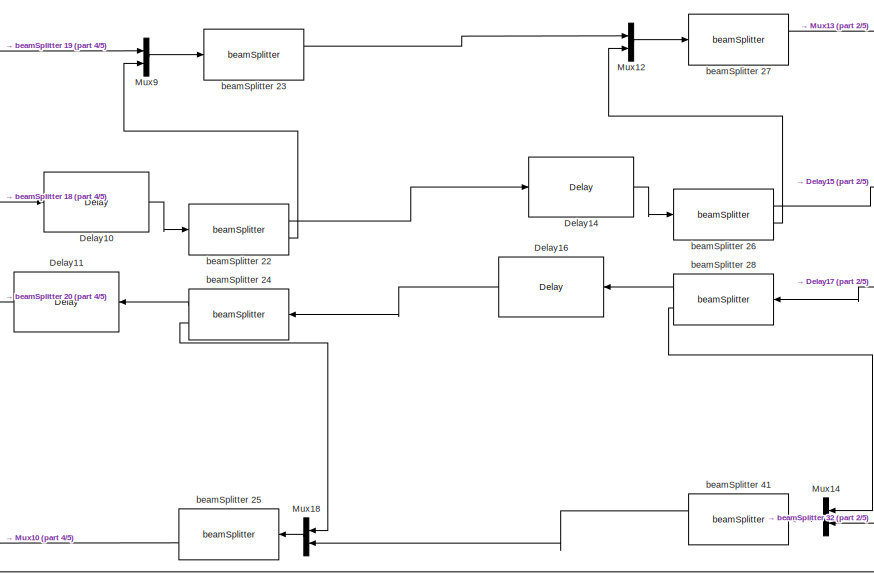
[diagram: root canvas - part 1/5, center side, full height]
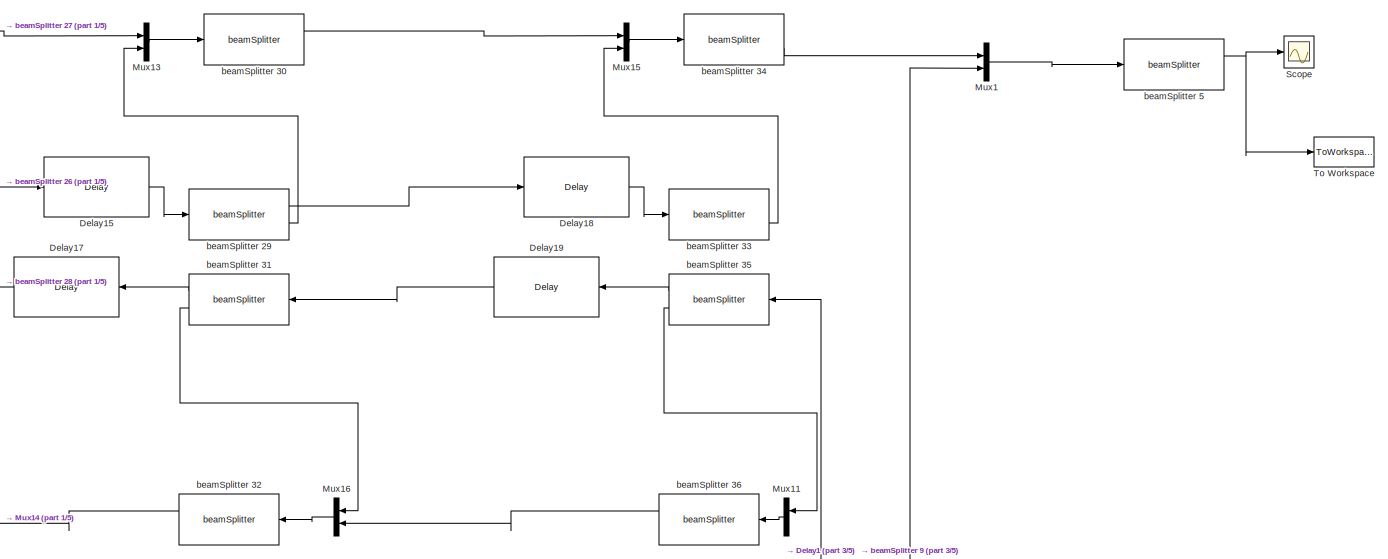
[diagram: root canvas - part 2/5, right side, full height]
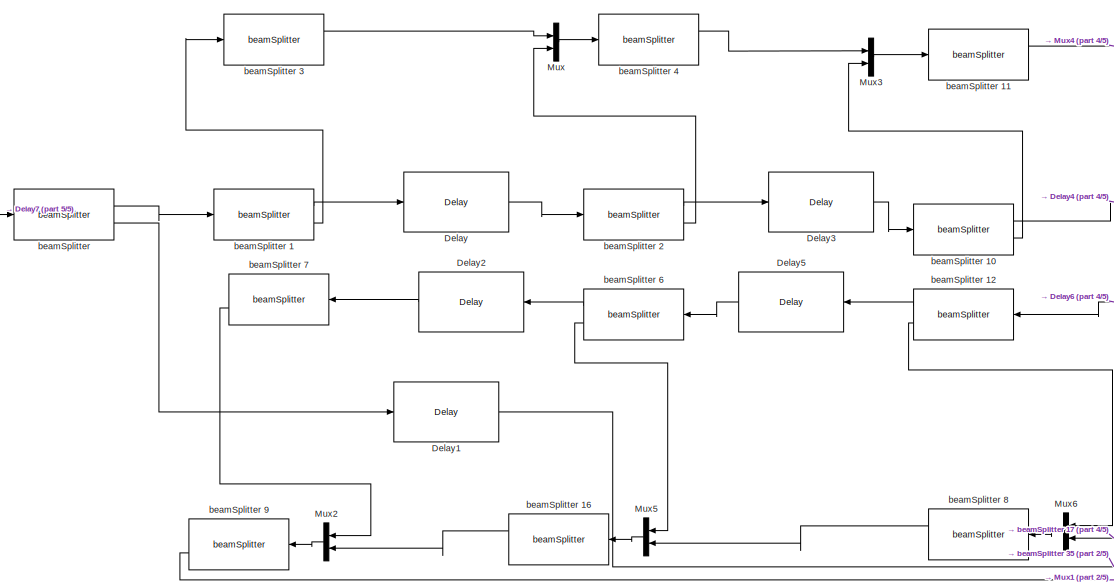
[diagram: root canvas - part 3/5, left side, full height]
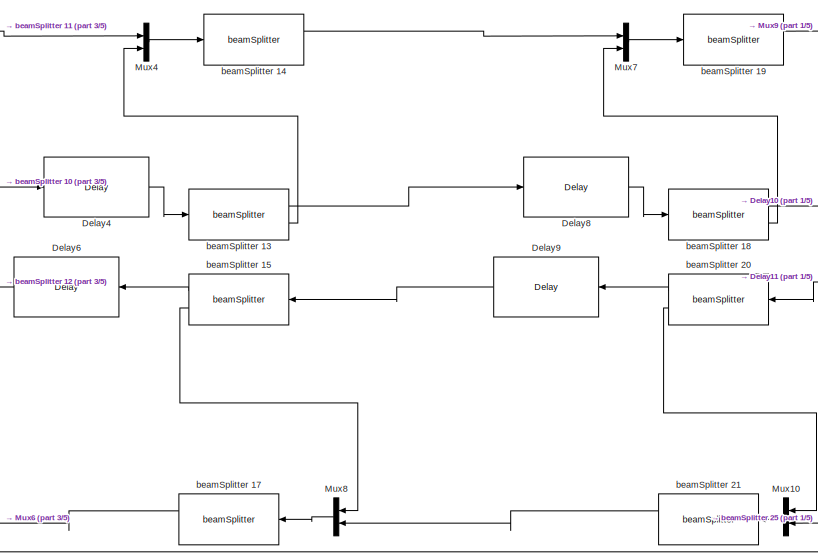
[diagram: root canvas - part 4/5, center side, full height]
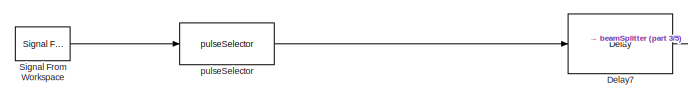
[diagram: root canvas - part 5/5, middle left region]
MODEL slx_b79724e3033b
KIND model
CONFIG InitFcn = initialization_n_20;
CONFIG StopFcn = OutputPlotting;
BLOCK [Reference] Delay  REF=BlockLib/Delay
  DelayAmt = delays(2)-delays(1)
  Ports = [1, 1]
  SourceBlock = BlockLib/Delay
BLOCK [Reference] Delay1  REF=BlockLib/Delay
  DelayAmt = delays(10)-delays(1)
  Ports = [1, 1]
  SourceBlock = BlockLib/Delay
BLOCK [Reference] Delay10  REF=BlockLib/Delay
  DelayAmt = delays(6)-delays(5)
  Ports = [1, 1]
  SourceBlock = BlockLib/Delay
BLOCK [Reference] Delay11  REF=BlockLib/Delay
  DelayAmt = delays(6)-delays(5)
  Ports = [1, 1]
  SourceBlock = BlockLib/Delay
BLOCK [Reference] Delay14  REF=BlockLib/Delay
  DelayAmt = delays(7)-delays(6)
  Ports = [1, 1]
  SourceBlock = BlockLib/Delay
BLOCK [Reference] Delay15  REF=BlockLib/Delay
  DelayAmt = delays(8)-delays(7)
  Ports = [1, 1]
  SourceBlock = BlockLib/Delay
BLOCK [Reference] Delay16  REF=BlockLib/Delay
  DelayAmt = delays(7)-delays(6)
  Ports = [1, 1]
  SourceBlock = BlockLib/Delay
BLOCK [Reference] Delay17  REF=BlockLib/Delay
  DelayAmt = delays(8)-delays(7)
  Ports = [1, 1]
  SourceBlock = BlockLib/Delay
BLOCK [Reference] Delay18  REF=BlockLib/Delay
  DelayAmt = delays(9)-delays(8)
  Ports = [1, 1]
  SourceBlock = BlockLib/Delay
BLOCK [Reference] Delay19  REF=BlockLib/Delay
  DelayAmt = delays(9)-delays(8)
  Ports = [1, 1]
  SourceBlock = BlockLib/Delay
BLOCK [Reference] Delay2  REF=BlockLib/Delay
  DelayAmt = delays(2)-delays(1)
  Ports = [1, 1]
  SourceBlock = BlockLib/Delay
BLOCK [Reference] Delay3  REF=BlockLib/Delay
  DelayAmt = delays(3)-delays(2)
  Ports = [1, 1]
  SourceBlock = BlockLib/Delay
BLOCK [Reference] Delay4  REF=BlockLib/Delay
  DelayAmt = delays(4)-delays(3)
  Ports = [1, 1]
  SourceBlock = BlockLib/Delay
BLOCK [Reference] Delay5  REF=BlockLib/Delay
  DelayAmt = delays(3)-delays(2)
  Ports = [1, 1]
  SourceBlock = BlockLib/Delay
BLOCK [Reference] Delay6  REF=BlockLib/Delay
  DelayAmt = delays(4)-delays(3)
  Ports = [1, 1]
  SourceBlock = BlockLib/Delay
BLOCK [Reference] Delay7  REF=BlockLib/Delay
  DelayAmt = delays(1)
  Ports = [1, 1]
  SourceBlock = BlockLib/Delay
BLOCK [Reference] Delay8  REF=BlockLib/Delay
  DelayAmt = delays(5)-delays(4)
  Ports = [1, 1]
  SourceBlock = BlockLib/Delay
BLOCK [Reference] Delay9  REF=BlockLib/Delay
  DelayAmt = delays(5)-delays(4)
  Ports = [1, 1]
  SourceBlock = BlockLib/Delay
BLOCK [Mux] Mux
  DisplayOption = bar
  Inputs = 2
  Ports = [2, 1]
BLOCK [Mux] Mux1
  DisplayOption = bar
  Inputs = 2
  Ports = [2, 1]
BLOCK [Mux] Mux10
  DisplayOption = bar
  Inputs = 2
  Ports = [2, 1]
BLOCK [Mux] Mux11
  DisplayOption = bar
  Inputs = 2
  Ports = [2, 1]
BLOCK [Mux] Mux12
  DisplayOption = bar
  Inputs = 2
  Ports = [2, 1]
BLOCK [Mux] Mux13
  DisplayOption = bar
  Inputs = 2
  Ports = [2, 1]
BLOCK [Mux] Mux14
  DisplayOption = bar
  Inputs = 2
  Ports = [2, 1]
BLOCK [Mux] Mux15
  DisplayOption = bar
  Inputs = 2
  Ports = [2, 1]
BLOCK [Mux] Mux16
  DisplayOption = bar
  Inputs = 2
  Ports = [2, 1]
BLOCK [Mux] Mux18
  DisplayOption = bar
  Inputs = 2
  Ports = [2, 1]
BLOCK [Mux] Mux2
  DisplayOption = bar
  Inputs = 2
  Ports = [2, 1]
BLOCK [Mux] Mux3
  DisplayOption = bar
  Inputs = 2
  Ports = [2, 1]
BLOCK [Mux] Mux4
  DisplayOption = bar
  Inputs = 2
  Ports = [2, 1]
BLOCK [Mux] Mux5
  DisplayOption = bar
  Inputs = 2
  Ports = [2, 1]
BLOCK [Mux] Mux6
  DisplayOption = bar
  Inputs = 2
  Ports = [2, 1]
BLOCK [Mux] Mux7
  DisplayOption = bar
  Inputs = 2
  Ports = [2, 1]
BLOCK [Mux] Mux8
  DisplayOption = bar
  Inputs = 2
  Ports = [2, 1]
BLOCK [Mux] Mux9
  DisplayOption = bar
  Inputs = 2
  Ports = [2, 1]
BLOCK [Scope] Scope
  Floating = off
  NumInputPorts = 1
  Ports = [1]
  ShowLegends = off
BLOCK [Reference] Signal From Workspace  REF=dspsrcs4/Signal From
Workspace
  OutputAfterFinalValue = Setting to zero
  Ports = [0, 1]
  SourceBlock = dspsrcs4/Signal From\nWorkspace
  SourceType = Signal From Workspace
  Ts = 1
  X = inputsignal
  ignoreOrWarnInputAndFrameLengths = off
  nsamps = 1
BLOCK [ToWorkspace] To Workspace
  FixptAsFi = on
  MaxDataPoints = inf
  Ports = [1]
  SampleTime = -1
  Save2DSignal = 3-D array (concatenate along third dimension)
  SaveFormat = Timeseries
  VariableName = simout
BLOCK [Reference] beamSplitter   REF=BlockLib/beamSplitter

  Ports = [1, 2]
  SourceBlock = BlockLib/beamSplitter
  SourceType = SubSystem
BLOCK [Reference] beamSplitter 1  REF=BlockLib/beamSplitter

  Ports = [1, 2]
  SourceBlock = BlockLib/beamSplitter
  SourceType = SubSystem
BLOCK [Reference] beamSplitter 10  REF=BlockLib/beamSplitter

  Ports = [1, 2]
  SourceBlock = BlockLib/beamSplitter
  SourceType = SubSystem
BLOCK [Reference] beamSplitter 11  REF=BlockLib/beamSplitter

  Ports = [1, 2]
  SourceBlock = BlockLib/beamSplitter
  SourceType = SubSystem
BLOCK [Reference] beamSplitter 12  REF=BlockLib/beamSplitter

  Ports = [1, 2]
  SourceBlock = BlockLib/beamSplitter
  SourceType = SubSystem
BLOCK [Reference] beamSplitter 13  REF=BlockLib/beamSplitter

  Ports = [1, 2]
  SourceBlock = BlockLib/beamSplitter
  SourceType = SubSystem
BLOCK [Reference] beamSplitter 14  REF=BlockLib/beamSplitter

  Ports = [1, 2]
  SourceBlock = BlockLib/beamSplitter
  SourceType = SubSystem
BLOCK [Reference] beamSplitter 15  REF=BlockLib/beamSplitter

  Ports = [1, 2]
  SourceBlock = BlockLib/beamSplitter
  SourceType = SubSystem
BLOCK [Reference] beamSplitter 16  REF=BlockLib/beamSplitter

  Ports = [1, 2]
  SourceBlock = BlockLib/beamSplitter
  SourceType = SubSystem
BLOCK [Reference] beamSplitter 17  REF=BlockLib/beamSplitter

  Ports = [1, 2]
  SourceBlock = BlockLib/beamSplitter
  SourceType = SubSystem
BLOCK [Reference] beamSplitter 18  REF=BlockLib/beamSplitter

  Ports = [1, 2]
  SourceBlock = BlockLib/beamSplitter
  SourceType = SubSystem
BLOCK [Reference] beamSplitter 19  REF=BlockLib/beamSplitter

  Ports = [1, 2]
  SourceBlock = BlockLib/beamSplitter
  SourceType = SubSystem
BLOCK [Reference] beamSplitter 2  REF=BlockLib/beamSplitter

  Ports = [1, 2]
  SourceBlock = BlockLib/beamSplitter
  SourceType = SubSystem
BLOCK [Reference] beamSplitter 20  REF=BlockLib/beamSplitter

  Ports = [1, 2]
  SourceBlock = BlockLib/beamSplitter
  SourceType = SubSystem
BLOCK [Reference] beamSplitter 21  REF=BlockLib/beamSplitter

  Ports = [1, 2]
  SourceBlock = BlockLib/beamSplitter
  SourceType = SubSystem
BLOCK [Reference] beamSplitter 22  REF=BlockLib/beamSplitter

  Ports = [1, 2]
  SourceBlock = BlockLib/beamSplitter
  SourceType = SubSystem
BLOCK [Reference] beamSplitter 23  REF=BlockLib/beamSplitter

  Ports = [1, 2]
  SourceBlock = BlockLib/beamSplitter
  SourceType = SubSystem
BLOCK [Reference] beamSplitter 24  REF=BlockLib/beamSplitter

  Ports = [1, 2]
  SourceBlock = BlockLib/beamSplitter
  SourceType = SubSystem
BLOCK [Reference] beamSplitter 25  REF=BlockLib/beamSplitter

  Ports = [1, 2]
  SourceBlock = BlockLib/beamSplitter
  SourceType = SubSystem
BLOCK [Reference] beamSplitter 26  REF=BlockLib/beamSplitter

  Ports = [1, 2]
  SourceBlock = BlockLib/beamSplitter
  SourceType = SubSystem
BLOCK [Reference] beamSplitter 27  REF=BlockLib/beamSplitter

  Ports = [1, 2]
  SourceBlock = BlockLib/beamSplitter
  SourceType = SubSystem
BLOCK [Reference] beamSplitter 28  REF=BlockLib/beamSplitter

  Ports = [1, 2]
  SourceBlock = BlockLib/beamSplitter
  SourceType = SubSystem
BLOCK [Reference] beamSplitter 29  REF=BlockLib/beamSplitter

  Ports = [1, 2]
  SourceBlock = BlockLib/beamSplitter
  SourceType = SubSystem
BLOCK [Reference] beamSplitter 3  REF=BlockLib/beamSplitter

  Ports = [1, 2]
  SourceBlock = BlockLib/beamSplitter
  SourceType = SubSystem
BLOCK [Reference] beamSplitter 30  REF=BlockLib/beamSplitter

  Ports = [1, 2]
  SourceBlock = BlockLib/beamSplitter
  SourceType = SubSystem
BLOCK [Reference] beamSplitter 31  REF=BlockLib/beamSplitter

  Ports = [1, 2]
  SourceBlock = BlockLib/beamSplitter
  SourceType = SubSystem
BLOCK [Reference] beamSplitter 32  REF=BlockLib/beamSplitter

  Ports = [1, 2]
  SourceBlock = BlockLib/beamSplitter
  SourceType = SubSystem
BLOCK [Reference] beamSplitter 33  REF=BlockLib/beamSplitter

  Ports = [1, 2]
  SourceBlock = BlockLib/beamSplitter
  SourceType = SubSystem
BLOCK [Reference] beamSplitter 34  REF=BlockLib/beamSplitter

  Ports = [1, 2]
  SourceBlock = BlockLib/beamSplitter
  SourceType = SubSystem
BLOCK [Reference] beamSplitter 35  REF=BlockLib/beamSplitter

  Ports = [1, 2]
  SourceBlock = BlockLib/beamSplitter
  SourceType = SubSystem
BLOCK [Reference] beamSplitter 36  REF=BlockLib/beamSplitter

  Ports = [1, 2]
  SourceBlock = BlockLib/beamSplitter
  SourceType = SubSystem
BLOCK [Reference] beamSplitter 4  REF=BlockLib/beamSplitter

  Ports = [1, 2]
  SourceBlock = BlockLib/beamSplitter
  SourceType = SubSystem
BLOCK [Reference] beamSplitter 41  REF=BlockLib/beamSplitter

  Ports = [1, 2]
  SourceBlock = BlockLib/beamSplitter
  SourceType = SubSystem
BLOCK [Reference] beamSplitter 5  REF=BlockLib/beamSplitter

  Ports = [1, 2]
  SourceBlock = BlockLib/beamSplitter
  SourceType = SubSystem
BLOCK [Reference] beamSplitter 6  REF=BlockLib/beamSplitter

  Ports = [1, 2]
  SourceBlock = BlockLib/beamSplitter
  SourceType = SubSystem
BLOCK [Reference] beamSplitter 7  REF=BlockLib/beamSplitter

  Ports = [1, 2]
  SourceBlock = BlockLib/beamSplitter
  SourceType = SubSystem
BLOCK [Reference] beamSplitter 8  REF=BlockLib/beamSplitter

  Ports = [1, 2]
  SourceBlock = BlockLib/beamSplitter
  SourceType = SubSystem
BLOCK [Reference] beamSplitter 9  REF=BlockLib/beamSplitter

  Ports = [1, 2]
  SourceBlock = BlockLib/beamSplitter
  SourceType = SubSystem
BLOCK [Reference] pulseSelector  REF=BlockLib/pulseSelector
  OutputDimensions = 1
  PCID = 1
  Ports = [1, 1]
  SourceBlock = BlockLib/pulseSelector
LINE Delay10:1 -> beamSplitter 22:1
LINE Delay11:1 -> beamSplitter 20:1
LINE Delay14:1 -> beamSplitter 26:1
LINE Delay15:1 -> beamSplitter 29:1
LINE Delay16:1 -> beamSplitter 24:1
LINE Delay17:1 -> beamSplitter 28:1
LINE Delay18:1 -> beamSplitter 33:1
LINE Delay19:1 -> beamSplitter 31:1
LINE Delay1:1 -> beamSplitter 35:1
LINE Delay2:1 -> beamSplitter 7:1
LINE Delay3:1 -> beamSplitter 10:1
LINE Delay4:1 -> beamSplitter 13:1
LINE Delay5:1 -> beamSplitter 6:1
LINE Delay6:1 -> beamSplitter 12:1
LINE Delay7:1 -> beamSplitter :1
LINE Delay8:1 -> beamSplitter 18:1
LINE Delay9:1 -> beamSplitter 15:1
LINE Delay:1 -> beamSplitter 2:1
LINE Mux10:1 -> beamSplitter 21:1
LINE Mux11:1 -> beamSplitter 36:1
LINE Mux12:1 -> beamSplitter 27:1
LINE Mux13:1 -> beamSplitter 30:1
LINE Mux14:1 -> beamSplitter 41:1
LINE Mux15:1 -> beamSplitter 34:1
LINE Mux16:1 -> beamSplitter 32:1
LINE Mux18:1 -> beamSplitter 25:1
LINE Mux1:1 -> beamSplitter 5:1
LINE Mux2:1 -> beamSplitter 9:1
LINE Mux3:1 -> beamSplitter 11:1
LINE Mux4:1 -> beamSplitter 14:1
LINE Mux5:1 -> beamSplitter 16:1
LINE Mux6:1 -> beamSplitter 8:1
LINE Mux7:1 -> beamSplitter 19:1
LINE Mux8:1 -> beamSplitter 17:1
LINE Mux9:1 -> beamSplitter 23:1
LINE Mux:1 -> beamSplitter 4:1
LINE Signal From Workspace:1 -> pulseSelector:1
LINE beamSplitter 10:1 -> Delay4:1
LINE beamSplitter 10:2 -> Mux3:2
LINE beamSplitter 11:1 -> Mux4:1
LINE beamSplitter 12:1 -> Delay5:1
LINE beamSplitter 12:2 -> Mux6:1
LINE beamSplitter 13:1 -> Delay8:1
LINE beamSplitter 13:2 -> Mux4:2
LINE beamSplitter 14:1 -> Mux7:1
LINE beamSplitter 15:1 -> Delay6:1
LINE beamSplitter 15:2 -> Mux8:1
LINE beamSplitter 16:1 -> Mux2:2
LINE beamSplitter 17:1 -> Mux6:2
LINE beamSplitter 18:1 -> Delay10:1
LINE beamSplitter 18:2 -> Mux7:2
LINE beamSplitter 19:1 -> Mux9:1
LINE beamSplitter 1:1 -> Delay:1
LINE beamSplitter 1:2 -> beamSplitter 3:1
LINE beamSplitter 20:1 -> Delay9:1
LINE beamSplitter 20:2 -> Mux10:1
LINE beamSplitter 21:1 -> Mux8:2
LINE beamSplitter 22:1 -> Delay14:1
LINE beamSplitter 22:2 -> Mux9:2
LINE beamSplitter 23:1 -> Mux12:1
LINE beamSplitter 24:1 -> Delay11:1
LINE beamSplitter 24:2 -> Mux18:1
LINE beamSplitter 25:2 -> Mux10:2
LINE beamSplitter 26:1 -> Delay15:1
LINE beamSplitter 26:2 -> Mux12:2
LINE beamSplitter 27:1 -> Mux13:1
LINE beamSplitter 28:1 -> Delay16:1
LINE beamSplitter 28:2 -> Mux14:1
LINE beamSplitter 29:1 -> Delay18:1
LINE beamSplitter 29:2 -> Mux13:2
LINE beamSplitter 2:1 -> Delay3:1
LINE beamSplitter 2:2 -> Mux:2
LINE beamSplitter 30:1 -> Mux15:1
LINE beamSplitter 31:1 -> Delay17:1
LINE beamSplitter 31:2 -> Mux16:1
LINE beamSplitter 32:1 -> Mux14:2
LINE beamSplitter 33:2 -> Mux15:2
LINE beamSplitter 34:2 -> Mux1:1
LINE beamSplitter 35:1 -> Delay19:1
LINE beamSplitter 35:2 -> Mux11:1
LINE beamSplitter 36:1 -> Mux16:2
LINE beamSplitter 3:1 -> Mux:1
LINE beamSplitter 41:1 -> Mux18:2
LINE beamSplitter 4:1 -> Mux3:1
NET beamSplitter 5:1 -> Scope:1, To Workspace:1
LINE beamSplitter 6:1 -> Delay2:1
LINE beamSplitter 6:2 -> Mux5:1
LINE beamSplitter 7:2 -> Mux2:1
LINE beamSplitter 8:1 -> Mux5:2
LINE beamSplitter 9:2 -> Mux1:2
LINE beamSplitter :1 -> beamSplitter 1:1
LINE beamSplitter :2 -> Delay1:1
LINE pulseSelector:1 -> Delay7:1
note: NET lines group one-source signal fan-out (src -> all destinations, sorted); 1:1 wires keep LINE
